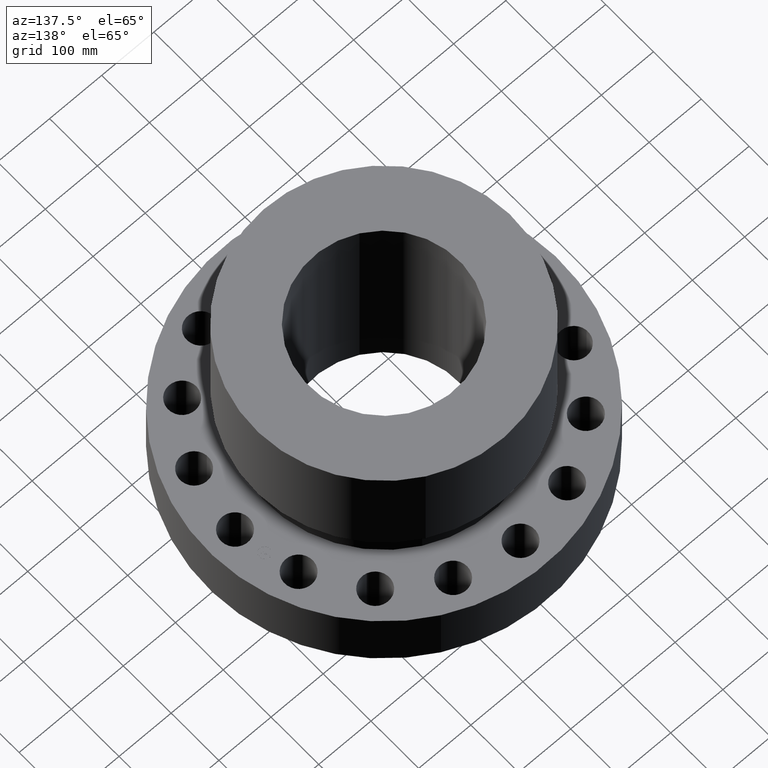
[diagram: clean part render]
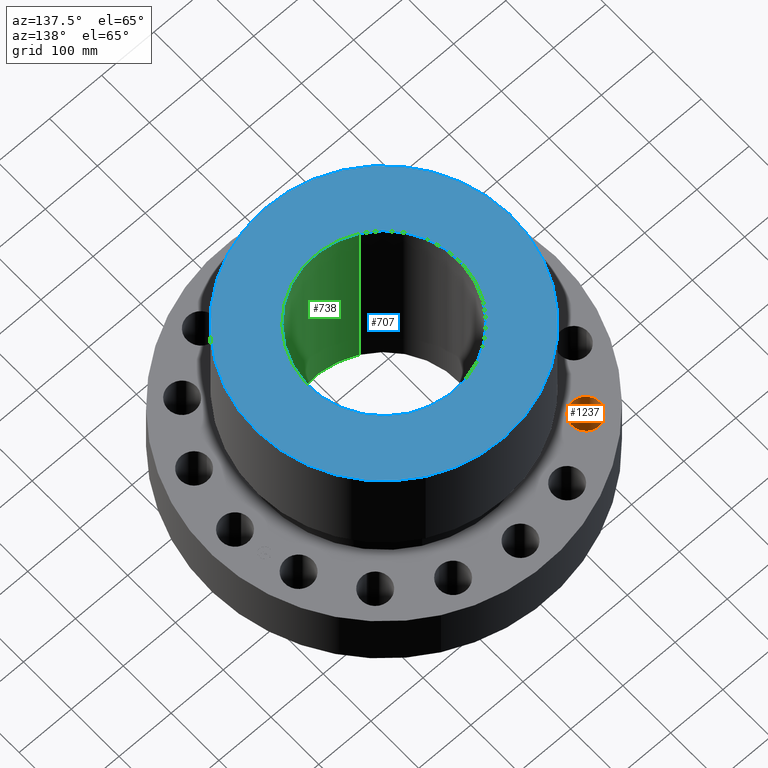
[diagram: same view with three faces highlighted in distinct colors, each labeled with its STEP entity id]
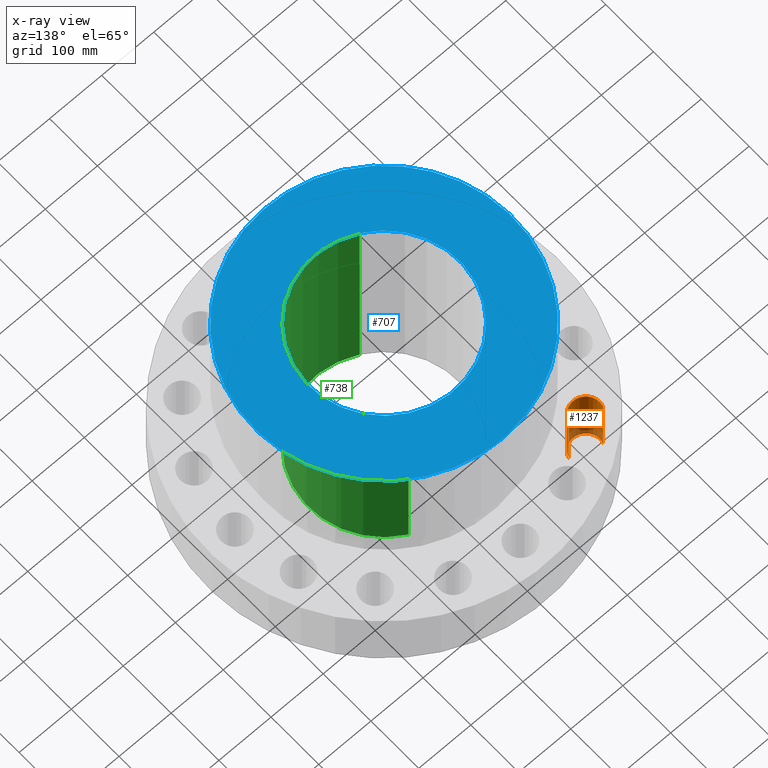
[diagram: x-ray of the same camera — body ghosted, the three highlighted faces saturated]
A machine part, auxiliary view with three faces highlighted in distinct colors.
The next image is the same camera in x-ray (body ghosted, the three faces saturated) — at least one of them is partly hidden behind the body in this view.
Their STEP definitions:

[orange] entity #1237 — the highlighted cylindrical surface (edge-blend (fillet) strip) has radius 26.924 mm, axis along (0, 0, 1).
#298=AXIS2_PLACEMENT_3D('Circle Axis2P3D',#296,#297,$) ;
#1198=AXIS2_PLACEMENT_3D('Cylinder Axis2P3D',#1195,#1196,#1197) ;
#1228=AXIS2_PLACEMENT_3D('Circle Axis2P3D',#1226,#1227,$) ;
#291=CARTESIAN_POINT('Vertex',(-8.97207389617,8.25338319139,0.)) ;
#293=CARTESIAN_POINT('Vertex',(-6.93782868059,7.65651938537,0.)) ;
#296=CARTESIAN_POINT('Axis2P3D Location',(-7.95495128838,7.95495128838,0.)) ;
#1195=CARTESIAN_POINT('Axis2P3D Location',(-7.95495128838,7.95495128838,0.00393700787402)) ;
#1200=CARTESIAN_POINT('Line Origine',(-6.93782868059,7.65651938537,2.44000000001)) ;
#1204=CARTESIAN_POINT('Vertex',(-6.93782868059,7.65651938537,4.88000000002)) ;
#1211=CARTESIAN_POINT('Vertex',(-8.97207389617,8.25338319139,4.88000000002)) ;
#1214=CARTESIAN_POINT('Line Origine',(-8.97207389617,8.25338319139,2.44000000001)) ;
#1226=CARTESIAN_POINT('Axis2P3D Location',(-7.95495128838,7.95495128838,4.88000000002)) ;
#297=DIRECTION('Axis2P3D Direction',(0.,0.,-0.0393700787402)) ;
#1196=DIRECTION('Axis2P3D Direction',(0.,0.,0.0393700787402)) ;
#1197=DIRECTION('Axis2P3D XDirection',(-0.0377775444876,0.0110842335096,0.)) ;
#1201=DIRECTION('Vector Direction',(0.,0.,0.0393700787402)) ;
#1215=DIRECTION('Vector Direction',(0.,0.,0.0393700787402)) ;
#1227=DIRECTION('Axis2P3D Direction',(0.,0.,0.0393700787402)) ;
#1202=VECTOR('Line Direction',#1201,0.0393700787402) ;
#1216=VECTOR('Line Direction',#1215,0.0393700787402) ;
#1232=ORIENTED_EDGE('',*,*,#1218,.F.) ;
#1233=ORIENTED_EDGE('',*,*,#1230,.F.) ;
#1234=ORIENTED_EDGE('',*,*,#1206,.T.) ;
#1235=ORIENTED_EDGE('',*,*,#300,.T.) ;
#1237=ADVANCED_FACE('PartBody',(#1236),#1199,.F.) ;
#299=CIRCLE('generated circle',#298,1.06) ;
#1229=CIRCLE('generated circle',#1228,1.06) ;
#1199=CYLINDRICAL_SURFACE('generated cylinder',#1198,1.06) ;
#300=EDGE_CURVE('',#294,#292,#299,.T.) ;
#1206=EDGE_CURVE('',#1205,#294,#1203,.F.) ;
#1218=EDGE_CURVE('',#1212,#292,#1217,.F.) ;
#1230=EDGE_CURVE('',#1205,#1212,#1229,.F.) ;
#1231=EDGE_LOOP('',(#1232,#1233,#1234,#1235)) ;
#1236=FACE_OUTER_BOUND('',#1231,.T.) ;
#1203=LINE('Line',#1200,#1202) ;
#1217=LINE('Line',#1214,#1216) ;
#292=VERTEX_POINT('',#291) ;
#294=VERTEX_POINT('',#293) ;
#1205=VERTEX_POINT('',#1204) ;
#1212=VERTEX_POINT('',#1211) ;

[blue] entity #707 — the highlighted planar face has unit normal (0, 0, -1).
#651=AXIS2_PLACEMENT_3D('Circle Axis2P3D',#649,#650,$) ;
#670=AXIS2_PLACEMENT_3D('Circle Axis2P3D',#668,#669,$) ;
#683=AXIS2_PLACEMENT_3D('Plane Axis2P3D',#680,#681,#682) ;
#691=AXIS2_PLACEMENT_3D('Circle Axis2P3D',#689,#690,$) ;
#700=AXIS2_PLACEMENT_3D('Circle Axis2P3D',#698,#699,$) ;
#646=CARTESIAN_POINT('Vertex',(4.64563346909,8.50377502475,15.7500000001)) ;
#649=CARTESIAN_POINT('Axis2P3D Location',(0.,0.,15.7500000001)) ;
#653=CARTESIAN_POINT('Vertex',(-4.64563346909,-8.50377502475,15.7500000001)) ;
#668=CARTESIAN_POINT('Axis2P3D Location',(0.,0.,15.7500000001)) ;
#680=CARTESIAN_POINT('Axis2P3D Location',(0.,9.69000000004,15.7500000001)) ;
#689=CARTESIAN_POINT('Axis2P3D Location',(0.,0.,15.7500000001)) ;
#693=CARTESIAN_POINT('Vertex',(-2.72793131467,-4.99344477718,15.7500000001)) ;
#695=CARTESIAN_POINT('Vertex',(2.72793131467,4.99344477718,15.7500000001)) ;
#698=CARTESIAN_POINT('Axis2P3D Location',(0.,0.,15.7500000001)) ;
#650=DIRECTION('Axis2P3D Direction',(0.,0.,-0.0393700787402)) ;
#669=DIRECTION('Axis2P3D Direction',(0.,0.,-0.0393700787402)) ;
#681=DIRECTION('Axis2P3D Direction',(0.,0.,-0.0393700787402)) ;
#682=DIRECTION('Axis2P3D XDirection',(0.0393700787402,0.,0.)) ;
#690=DIRECTION('Axis2P3D Direction',(0.,0.,-0.0393700787402)) ;
#699=DIRECTION('Axis2P3D Direction',(0.,0.,-0.0393700787402)) ;
#686=ORIENTED_EDGE('',*,*,#655,.F.) ;
#687=ORIENTED_EDGE('',*,*,#672,.F.) ;
#704=ORIENTED_EDGE('',*,*,#697,.T.) ;
#705=ORIENTED_EDGE('',*,*,#702,.T.) ;
#706=FACE_BOUND('',#703,.T.) ;
#707=ADVANCED_FACE('PartBody',(#688,#706),#684,.F.) ;
#652=CIRCLE('generated circle',#651,9.69000000004) ;
#671=CIRCLE('generated circle',#670,9.69000000004) ;
#692=CIRCLE('generated circle',#691,5.69000000002) ;
#701=CIRCLE('generated circle',#700,5.69000000002) ;
#655=EDGE_CURVE('',#647,#654,#652,.T.) ;
#672=EDGE_CURVE('',#654,#647,#671,.T.) ;
#697=EDGE_CURVE('',#694,#696,#692,.T.) ;
#702=EDGE_CURVE('',#696,#694,#701,.T.) ;
#685=EDGE_LOOP('',(#686,#687)) ;
#703=EDGE_LOOP('',(#704,#705)) ;
#688=FACE_OUTER_BOUND('',#685,.T.) ;
#684=PLANE('',#683) ;
#647=VERTEX_POINT('',#646) ;
#654=VERTEX_POINT('',#653) ;
#694=VERTEX_POINT('',#693) ;
#696=VERTEX_POINT('',#695) ;

[green] entity #738 — the highlighted cylindrical surface (partial cylindrical patch) has radius 144.526 mm, axis along (0, 0, -1).
#700=AXIS2_PLACEMENT_3D('Circle Axis2P3D',#698,#699,$) ;
#711=AXIS2_PLACEMENT_3D('Cylinder Axis2P3D',#708,#709,#710) ;
#722=AXIS2_PLACEMENT_3D('Circle Axis2P3D',#720,#721,$) ;
#693=CARTESIAN_POINT('Vertex',(-2.72793131467,-4.99344477718,15.7500000001)) ;
#695=CARTESIAN_POINT('Vertex',(2.72793131467,4.99344477718,15.7500000001)) ;
#698=CARTESIAN_POINT('Axis2P3D Location',(0.,0.,15.7500000001)) ;
#708=CARTESIAN_POINT('Axis2P3D Location',(0.,0.,7.75000000003)) ;
#713=CARTESIAN_POINT('Line Origine',(2.72793131467,4.99344477718,7.75000000003)) ;
#717=CARTESIAN_POINT('Vertex',(2.72793131467,4.99344477718,-0.250000000001)) ;
#720=CARTESIAN_POINT('Axis2P3D Location',(0.,0.,-0.250000000001)) ;
#724=CARTESIAN_POINT('Vertex',(-2.72793131467,-4.99344477718,-0.250000000001)) ;
#727=CARTESIAN_POINT('Line Origine',(-2.72793131467,-4.99344477718,7.75000000003)) ;
#699=DIRECTION('Axis2P3D Direction',(0.,0.,-0.0393700787402)) ;
#709=DIRECTION('Axis2P3D Direction',(0.,0.,-0.0393700787402)) ;
#710=DIRECTION('Axis2P3D XDirection',(-0.0188750212049,-0.0345504945626,0.)) ;
#714=DIRECTION('Vector Direction',(0.,0.,-0.0393700787402)) ;
#721=DIRECTION('Axis2P3D Direction',(0.,0.,-0.0393700787402)) ;
#728=DIRECTION('Vector Direction',(0.,0.,-0.0393700787402)) ;
#715=VECTOR('Line Direction',#714,0.0393700787402) ;
#729=VECTOR('Line Direction',#728,0.0393700787402) ;
#733=ORIENTED_EDGE('',*,*,#702,.F.) ;
#734=ORIENTED_EDGE('',*,*,#719,.T.) ;
#735=ORIENTED_EDGE('',*,*,#726,.T.) ;
#736=ORIENTED_EDGE('',*,*,#731,.F.) ;
#738=ADVANCED_FACE('PartBody',(#737),#712,.F.) ;
#701=CIRCLE('generated circle',#700,5.69000000002) ;
#723=CIRCLE('generated circle',#722,5.69000000002) ;
#712=CYLINDRICAL_SURFACE('generated cylinder',#711,5.69000000002) ;
#702=EDGE_CURVE('',#696,#694,#701,.T.) ;
#719=EDGE_CURVE('',#696,#718,#716,.T.) ;
#726=EDGE_CURVE('',#718,#725,#723,.T.) ;
#731=EDGE_CURVE('',#694,#725,#730,.T.) ;
#732=EDGE_LOOP('',(#733,#734,#735,#736)) ;
#737=FACE_OUTER_BOUND('',#732,.T.) ;
#716=LINE('Line',#713,#715) ;
#730=LINE('Line',#727,#729) ;
#694=VERTEX_POINT('',#693) ;
#696=VERTEX_POINT('',#695) ;
#718=VERTEX_POINT('',#717) ;
#725=VERTEX_POINT('',#724) ;